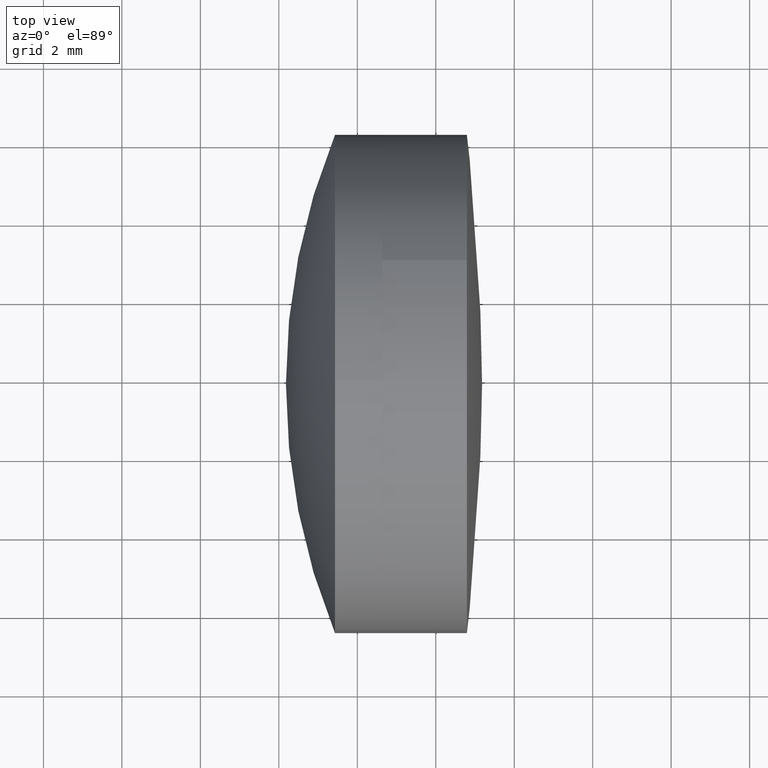
[diagram: clean part render]
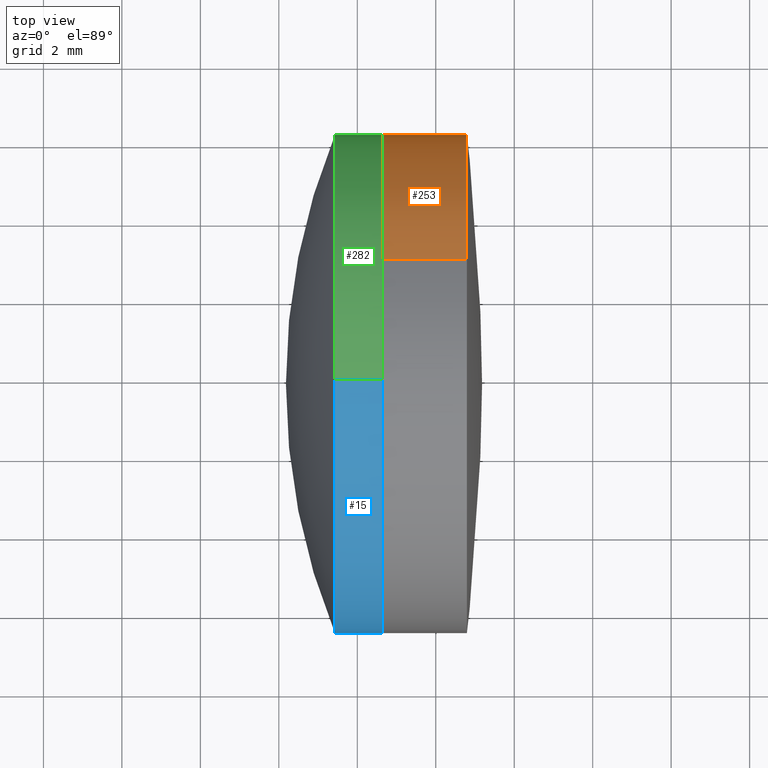
[diagram: same view with three faces highlighted in distinct colors, each labeled with its STEP entity id]
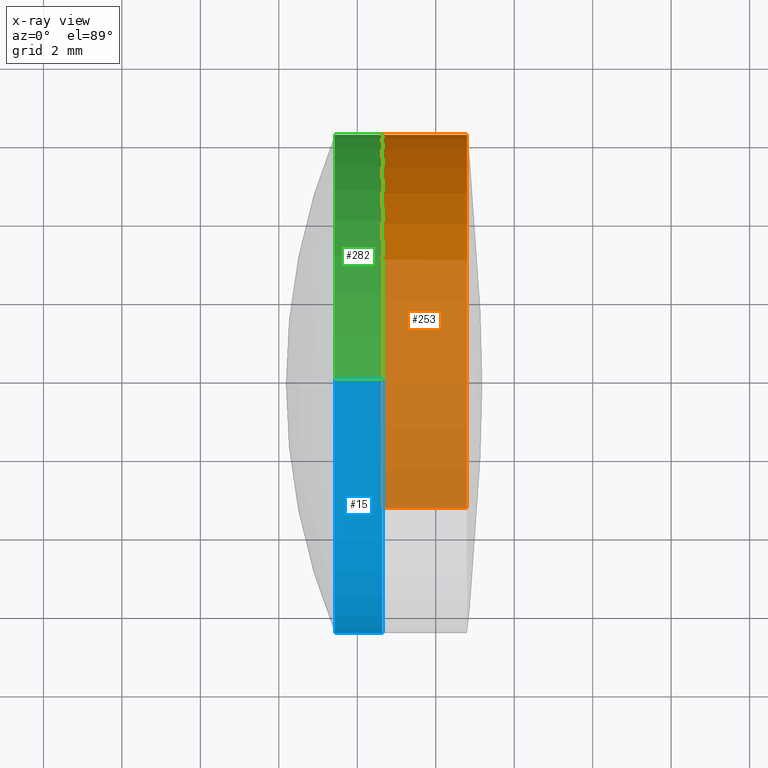
[diagram: x-ray of the same camera — body ghosted, the three highlighted faces saturated]
A machine part, top view with three faces highlighted in distinct colors.
The next image is the same camera in x-ray (body ghosted, the three faces saturated) — at least one of them is partly hidden behind the body in this view.
Their STEP definitions:

[orange] entity #253 — the highlighted cylindrical surface (partial cylindrical patch) has radius 6.35 mm, axis along (-1, 0, 0).
#9 = DIRECTION ( 'NONE',  ( 0.000000000000000000, 0.4836518060285191489, 0.8752604929535845457 ) ) ;
#17 = DIRECTION ( 'NONE',  ( -1.000000000000000000, 4.163336342344351818E-17, 1.110223024625159006E-16 ) ) ;
#20 = DIRECTION ( 'NONE',  ( 0.000000000000000000, 0.4836518060285191489, 0.8752604929535845457 ) ) ;
#26 = ORIENTED_EDGE ( 'NONE', *, *, #397, .F. ) ;
#34 = CIRCLE ( 'NONE', #122, 6.349999999999999645 ) ;
#41 = CARTESIAN_POINT ( 'NONE',  ( -63.20740906827801098, 10.79029800029139530, -5.557904130255268527 ) ) ;
#42 = EDGE_CURVE ( 'NONE', #396, #382, #98, .T. ) ;
#44 = DIRECTION ( 'NONE',  ( -1.000000000000000000, 4.163336342344351818E-17, 1.110223024625159006E-16 ) ) ;
#45 = CARTESIAN_POINT ( 'NONE',  ( -63.20740906827801098, 19.41939109882771675, -3.071188968281085341 ) ) ;
#46 = EDGE_CURVE ( 'NONE', #159, #306, #34, .T. ) ;
#66 = DIRECTION ( 'NONE',  ( -1.000000000000000000, 4.163336342344351818E-17, 1.110223024625159006E-16 ) ) ;
#76 = AXIS2_PLACEMENT_3D ( 'NONE', #242, #66, #261 ) ;
#81 = CARTESIAN_POINT ( 'NONE',  ( -65.36452242713134808, 10.79029800029139530, -5.557904130255268527 ) ) ;
#88 = CARTESIAN_POINT ( 'NONE',  ( -63.81928922736018706, 10.79029800029139707, -5.557904130255267638 ) ) ;
#91 = ORIENTED_EDGE ( 'NONE', *, *, #46, .T. ) ;
#98 = LINE ( 'NONE', #88, #336 ) ;
#119 = EDGE_LOOP ( 'NONE', ( #274, #366, #26, #368, #447, #91 ) ) ;
#120 = DIRECTION ( 'NONE',  ( -1.000000000000000000, 4.163336342344351818E-17, 1.110223024625159006E-16 ) ) ;
#122 = AXIS2_PLACEMENT_3D ( 'NONE', #434, #156, #20 ) ;
#130 = EDGE_CURVE ( 'NONE', #198, #358, #239, .T. ) ;
#151 = EDGE_CURVE ( 'NONE', #306, #396, #320, .T. ) ;
#156 = DIRECTION ( 'NONE',  ( -1.000000000000000000, 4.163336342344351818E-17, 1.110223024625159006E-16 ) ) ;
#159 = VERTEX_POINT ( 'NONE', #211 ) ;
#184 = CARTESIAN_POINT ( 'NONE',  ( -63.81928922736018706, 13.86148696857249263, -6.484157397467768041E-15 ) ) ;
#198 = VERTEX_POINT ( 'NONE', #303 ) ;
#205 = DIRECTION ( 'NONE',  ( -1.000000000000000000, 4.163336342344351818E-17, 1.110223024625159006E-16 ) ) ;
#207 = EDGE_CURVE ( 'NONE', #159, #198, #307, .T. ) ;
#208 = AXIS2_PLACEMENT_3D ( 'NONE', #184, #120, #9 ) ;
#211 = CARTESIAN_POINT ( 'NONE',  ( -63.20740906827801098, 16.93267593685358818, 5.557904130255254316 ) ) ;
#214 = CIRCLE ( 'NONE', #415, 6.349999999999999645 ) ;
#218 = CARTESIAN_POINT ( 'NONE',  ( -65.36452242713134808, 13.86148696857249263, -6.312602049787652538E-15 ) ) ;
#220 = VECTOR ( 'NONE', #205, 1000.000000000000000 ) ;
#239 = CIRCLE ( 'NONE', #76, 6.349999999999999645 ) ;
#242 = CARTESIAN_POINT ( 'NONE',  ( -65.36452242713134808, 13.86148696857249263, -6.312602049787652538E-15 ) ) ;
#253 = ADVANCED_FACE ( 'NONE', ( #273 ), #275, .T. ) ;
#261 = DIRECTION ( 'NONE',  ( 0.000000000000000000, 0.4836518060285191489, 0.8752604929535845457 ) ) ;
#264 = DIRECTION ( 'NONE',  ( -1.000000000000000000, 4.163336342344351818E-17, 1.110223024625159006E-16 ) ) ;
#273 = FACE_OUTER_BOUND ( 'NONE', #119, .T. ) ;
#274 = ORIENTED_EDGE ( 'NONE', *, *, #151, .T. ) ;
#275 = CYLINDRICAL_SURFACE ( 'NONE', #208, 6.349999999999999645 ) ;
#301 = DIRECTION ( 'NONE',  ( 0.000000000000000000, 0.4836518060285191489, 0.8752604929535845457 ) ) ;
#303 = CARTESIAN_POINT ( 'NONE',  ( -65.36452242713134808, 16.93267593685358818, 5.557904130255255204 ) ) ;
#306 = VERTEX_POINT ( 'NONE', #45 ) ;
#307 = LINE ( 'NONE', #417, #220 ) ;
#320 = CIRCLE ( 'NONE', #401, 6.349999999999999645 ) ;
#336 = VECTOR ( 'NONE', #17, 1000.000000000000000 ) ;
#358 = VERTEX_POINT ( 'NONE', #418 ) ;
#366 = ORIENTED_EDGE ( 'NONE', *, *, #42, .T. ) ;
#368 = ORIENTED_EDGE ( 'NONE', *, *, #130, .F. ) ;
#382 = VERTEX_POINT ( 'NONE', #81 ) ;
#388 = DIRECTION ( 'NONE',  ( 0.000000000000000000, 0.4836518060285191489, 0.8752604929535845457 ) ) ;
#396 = VERTEX_POINT ( 'NONE', #41 ) ;
#397 = EDGE_CURVE ( 'NONE', #358, #382, #214, .T. ) ;
#401 = AXIS2_PLACEMENT_3D ( 'NONE', #443, #264, #301 ) ;
#415 = AXIS2_PLACEMENT_3D ( 'NONE', #218, #44, #388 ) ;
#417 = CARTESIAN_POINT ( 'NONE',  ( -63.81928922736018706, 16.93267593685358818, 5.557904130255255204 ) ) ;
#418 = CARTESIAN_POINT ( 'NONE',  ( -65.36452242713134808, 19.41939109882775227, -3.071188968281102216 ) ) ;
#434 = CARTESIAN_POINT ( 'NONE',  ( -63.20740906827801098, 13.86148696857249263, -6.552089741560200011E-15 ) ) ;
#443 = CARTESIAN_POINT ( 'NONE',  ( -63.20740906827801098, 13.86148696857249263, -6.552089741560200011E-15 ) ) ;
#447 = ORIENTED_EDGE ( 'NONE', *, *, #207, .F. ) ;

[blue] entity #15 — the highlighted cylindrical surface (partial cylindrical patch) has radius 6.35 mm, axis along (-1, -0, -0).
#1 = CARTESIAN_POINT ( 'NONE',  ( -66.56896664335823743, 13.86148696857247842, 6.349999999999999645 ) ) ;
#15 = ADVANCED_FACE ( 'NONE', ( #332 ), #49, .T. ) ;
#25 = CARTESIAN_POINT ( 'NONE',  ( -67.81928922736018706, 13.86148696857247842, 0.000000000000000000 ) ) ;
#40 = CARTESIAN_POINT ( 'NONE',  ( -67.81928922736018706, 13.86148696857247842, 6.349999999999999645 ) ) ;
#49 = CYLINDRICAL_SURFACE ( 'NONE', #132, 6.349999999999999645 ) ;
#50 = CIRCLE ( 'NONE', #390, 6.349999999999999645 ) ;
#52 = AXIS2_PLACEMENT_3D ( 'NONE', #212, #350, #150 ) ;
#71 = VERTEX_POINT ( 'NONE', #258 ) ;
#75 = CARTESIAN_POINT ( 'NONE',  ( -67.81928922736018706, 13.86148696857247842, -6.349999999999999645 ) ) ;
#89 = ORIENTED_EDGE ( 'NONE', *, *, #383, .F. ) ;
#112 = CARTESIAN_POINT ( 'NONE',  ( -66.56896664335823743, 13.86148696857247842, 0.000000000000000000 ) ) ;
#113 = DIRECTION ( 'NONE',  ( -1.000000000000000000, -0.000000000000000000, -0.000000000000000000 ) ) ;
#116 = AXIS2_PLACEMENT_3D ( 'NONE', #268, #334, #206 ) ;
#121 = CARTESIAN_POINT ( 'NONE',  ( -66.56896664335823743, 13.86148696857247842, -6.349999999999999645 ) ) ;
#132 = AXIS2_PLACEMENT_3D ( 'NONE', #25, #361, #168 ) ;
#134 = VECTOR ( 'NONE', #420, 1000.000000000000000 ) ;
#142 = DIRECTION ( 'NONE',  ( -1.000000000000000000, -0.000000000000000000, -0.000000000000000000 ) ) ;
#145 = CARTESIAN_POINT ( 'NONE',  ( -65.36452242713134808, 7.511486968572475220, -7.776507174585696107E-16 ) ) ;
#147 = VECTOR ( 'NONE', #113, 1000.000000000000000 ) ;
#149 = VERTEX_POINT ( 'NONE', #145 ) ;
#150 = DIRECTION ( 'NONE',  ( 0.000000000000000000, 0.000000000000000000, 1.000000000000000000 ) ) ;
#153 = CARTESIAN_POINT ( 'NONE',  ( -65.36452242713134808, 13.86148696857247842, 0.000000000000000000 ) ) ;
#162 = ORIENTED_EDGE ( 'NONE', *, *, #181, .F. ) ;
#168 = DIRECTION ( 'NONE',  ( 0.000000000000000000, 0.000000000000000000, 1.000000000000000000 ) ) ;
#181 = EDGE_CURVE ( 'NONE', #344, #183, #50, .T. ) ;
#183 = VERTEX_POINT ( 'NONE', #1 ) ;
#186 = CIRCLE ( 'NONE', #298, 6.349999999999999645 ) ;
#187 = LINE ( 'NONE', #40, #147 ) ;
#188 = EDGE_CURVE ( 'NONE', #149, #71, #297, .T. ) ;
#204 = DIRECTION ( 'NONE',  ( 0.000000000000000000, 0.000000000000000000, 1.000000000000000000 ) ) ;
#206 = DIRECTION ( 'NONE',  ( 0.000000000000000000, 0.000000000000000000, 1.000000000000000000 ) ) ;
#212 = CARTESIAN_POINT ( 'NONE',  ( -66.56896664335823743, 13.86148696857247842, 0.000000000000000000 ) ) ;
#237 = ORIENTED_EDGE ( 'NONE', *, *, #411, .F. ) ;
#244 = CARTESIAN_POINT ( 'NONE',  ( -65.36452242713134808, 13.86148696857247842, -6.349999999999999645 ) ) ;
#248 = EDGE_CURVE ( 'NONE', #71, #183, #187, .T. ) ;
#250 = DIRECTION ( 'NONE',  ( -1.000000000000000000, -0.000000000000000000, -0.000000000000000000 ) ) ;
#256 = ORIENTED_EDGE ( 'NONE', *, *, #370, .T. ) ;
#258 = CARTESIAN_POINT ( 'NONE',  ( -65.36452242713134808, 13.86148696857247842, 6.349999999999999645 ) ) ;
#265 = VERTEX_POINT ( 'NONE', #244 ) ;
#267 = ORIENTED_EDGE ( 'NONE', *, *, #188, .T. ) ;
#268 = CARTESIAN_POINT ( 'NONE',  ( -65.36452242713134808, 13.86148696857247842, 0.000000000000000000 ) ) ;
#277 = LINE ( 'NONE', #75, #134 ) ;
#285 = ORIENTED_EDGE ( 'NONE', *, *, #248, .T. ) ;
#297 = CIRCLE ( 'NONE', #116, 6.349999999999999645 ) ;
#298 = AXIS2_PLACEMENT_3D ( 'NONE', #153, #250, #381 ) ;
#332 = FACE_OUTER_BOUND ( 'NONE', #359, .T. ) ;
#334 = DIRECTION ( 'NONE',  ( -1.000000000000000000, -0.000000000000000000, -0.000000000000000000 ) ) ;
#344 = VERTEX_POINT ( 'NONE', #387 ) ;
#346 = VERTEX_POINT ( 'NONE', #121 ) ;
#350 = DIRECTION ( 'NONE',  ( -1.000000000000000000, -0.000000000000000000, -0.000000000000000000 ) ) ;
#359 = EDGE_LOOP ( 'NONE', ( #237, #256, #267, #285, #162, #89 ) ) ;
#361 = DIRECTION ( 'NONE',  ( -1.000000000000000000, -0.000000000000000000, -0.000000000000000000 ) ) ;
#370 = EDGE_CURVE ( 'NONE', #265, #149, #186, .T. ) ;
#381 = DIRECTION ( 'NONE',  ( 0.000000000000000000, 0.000000000000000000, 1.000000000000000000 ) ) ;
#383 = EDGE_CURVE ( 'NONE', #346, #344, #402, .T. ) ;
#387 = CARTESIAN_POINT ( 'NONE',  ( -66.56896664335823743, 7.511486968572478773, -7.776507174585692163E-16 ) ) ;
#390 = AXIS2_PLACEMENT_3D ( 'NONE', #112, #142, #204 ) ;
#402 = CIRCLE ( 'NONE', #52, 6.349999999999999645 ) ;
#411 = EDGE_CURVE ( 'NONE', #265, #346, #277, .T. ) ;
#420 = DIRECTION ( 'NONE',  ( -1.000000000000000000, -0.000000000000000000, -0.000000000000000000 ) ) ;

[green] entity #282 — the highlighted cylindrical surface (partial cylindrical patch) has radius 6.35 mm, axis along (-1, -0, -0).
#1 = CARTESIAN_POINT ( 'NONE',  ( -66.56896664335823743, 13.86148696857247842, 6.349999999999999645 ) ) ;
#12 = FACE_OUTER_BOUND ( 'NONE', #288, .T. ) ;
#18 = DIRECTION ( 'NONE',  ( 0.000000000000000000, 0.000000000000000000, 1.000000000000000000 ) ) ;
#24 = EDGE_CURVE ( 'NONE', #95, #265, #63, .T. ) ;
#29 = EDGE_CURVE ( 'NONE', #71, #95, #165, .T. ) ;
#37 = CARTESIAN_POINT ( 'NONE',  ( -67.81928922736018706, 13.86148696857247842, 0.000000000000000000 ) ) ;
#38 = ORIENTED_EDGE ( 'NONE', *, *, #24, .T. ) ;
#40 = CARTESIAN_POINT ( 'NONE',  ( -67.81928922736018706, 13.86148696857247842, 6.349999999999999645 ) ) ;
#43 = AXIS2_PLACEMENT_3D ( 'NONE', #323, #394, #18 ) ;
#56 = CARTESIAN_POINT ( 'NONE',  ( -65.36452242713134808, 20.21148696857247984, 0.000000000000000000 ) ) ;
#58 = VERTEX_POINT ( 'NONE', #127 ) ;
#63 = CIRCLE ( 'NONE', #213, 6.349999999999999645 ) ;
#71 = VERTEX_POINT ( 'NONE', #258 ) ;
#75 = CARTESIAN_POINT ( 'NONE',  ( -67.81928922736018706, 13.86148696857247842, -6.349999999999999645 ) ) ;
#95 = VERTEX_POINT ( 'NONE', #56 ) ;
#113 = DIRECTION ( 'NONE',  ( -1.000000000000000000, -0.000000000000000000, -0.000000000000000000 ) ) ;
#117 = AXIS2_PLACEMENT_3D ( 'NONE', #312, #148, #278 ) ;
#121 = CARTESIAN_POINT ( 'NONE',  ( -66.56896664335823743, 13.86148696857247842, -6.349999999999999645 ) ) ;
#124 = CIRCLE ( 'NONE', #117, 6.349999999999999645 ) ;
#127 = CARTESIAN_POINT ( 'NONE',  ( -66.56896664335823743, 20.21148696857247984, 0.000000000000000000 ) ) ;
#134 = VECTOR ( 'NONE', #420, 1000.000000000000000 ) ;
#147 = VECTOR ( 'NONE', #113, 1000.000000000000000 ) ;
#148 = DIRECTION ( 'NONE',  ( -1.000000000000000000, -0.000000000000000000, -0.000000000000000000 ) ) ;
#154 = DIRECTION ( 'NONE',  ( 0.000000000000000000, 0.000000000000000000, 1.000000000000000000 ) ) ;
#155 = AXIS2_PLACEMENT_3D ( 'NONE', #37, #386, #154 ) ;
#165 = CIRCLE ( 'NONE', #43, 6.349999999999999645 ) ;
#183 = VERTEX_POINT ( 'NONE', #1 ) ;
#187 = LINE ( 'NONE', #40, #147 ) ;
#191 = ORIENTED_EDGE ( 'NONE', *, *, #296, .F. ) ;
#213 = AXIS2_PLACEMENT_3D ( 'NONE', #329, #292, #293 ) ;
#215 = CARTESIAN_POINT ( 'NONE',  ( -66.56896664335823743, 13.86148696857247842, 0.000000000000000000 ) ) ;
#228 = ORIENTED_EDGE ( 'NONE', *, *, #29, .T. ) ;
#240 = CIRCLE ( 'NONE', #353, 6.349999999999999645 ) ;
#244 = CARTESIAN_POINT ( 'NONE',  ( -65.36452242713134808, 13.86148696857247842, -6.349999999999999645 ) ) ;
#245 = DIRECTION ( 'NONE',  ( -1.000000000000000000, -0.000000000000000000, -0.000000000000000000 ) ) ;
#248 = EDGE_CURVE ( 'NONE', #71, #183, #187, .T. ) ;
#258 = CARTESIAN_POINT ( 'NONE',  ( -65.36452242713134808, 13.86148696857247842, 6.349999999999999645 ) ) ;
#265 = VERTEX_POINT ( 'NONE', #244 ) ;
#277 = LINE ( 'NONE', #75, #134 ) ;
#278 = DIRECTION ( 'NONE',  ( 0.000000000000000000, 0.000000000000000000, 1.000000000000000000 ) ) ;
#282 = ADVANCED_FACE ( 'NONE', ( #12 ), #343, .T. ) ;
#288 = EDGE_LOOP ( 'NONE', ( #38, #437, #302, #191, #325, #228 ) ) ;
#292 = DIRECTION ( 'NONE',  ( -1.000000000000000000, -0.000000000000000000, -0.000000000000000000 ) ) ;
#293 = DIRECTION ( 'NONE',  ( 0.000000000000000000, 0.000000000000000000, 1.000000000000000000 ) ) ;
#296 = EDGE_CURVE ( 'NONE', #183, #58, #124, .T. ) ;
#302 = ORIENTED_EDGE ( 'NONE', *, *, #439, .F. ) ;
#312 = CARTESIAN_POINT ( 'NONE',  ( -66.56896664335823743, 13.86148696857247842, 0.000000000000000000 ) ) ;
#323 = CARTESIAN_POINT ( 'NONE',  ( -65.36452242713134808, 13.86148696857247842, 0.000000000000000000 ) ) ;
#325 = ORIENTED_EDGE ( 'NONE', *, *, #248, .F. ) ;
#329 = CARTESIAN_POINT ( 'NONE',  ( -65.36452242713134808, 13.86148696857247842, 0.000000000000000000 ) ) ;
#343 = CYLINDRICAL_SURFACE ( 'NONE', #155, 6.349999999999999645 ) ;
#346 = VERTEX_POINT ( 'NONE', #121 ) ;
#353 = AXIS2_PLACEMENT_3D ( 'NONE', #215, #245, #384 ) ;
#384 = DIRECTION ( 'NONE',  ( 0.000000000000000000, 0.000000000000000000, 1.000000000000000000 ) ) ;
#386 = DIRECTION ( 'NONE',  ( -1.000000000000000000, -0.000000000000000000, -0.000000000000000000 ) ) ;
#394 = DIRECTION ( 'NONE',  ( -1.000000000000000000, -0.000000000000000000, -0.000000000000000000 ) ) ;
#411 = EDGE_CURVE ( 'NONE', #265, #346, #277, .T. ) ;
#420 = DIRECTION ( 'NONE',  ( -1.000000000000000000, -0.000000000000000000, -0.000000000000000000 ) ) ;
#437 = ORIENTED_EDGE ( 'NONE', *, *, #411, .T. ) ;
#439 = EDGE_CURVE ( 'NONE', #58, #346, #240, .T. ) ;